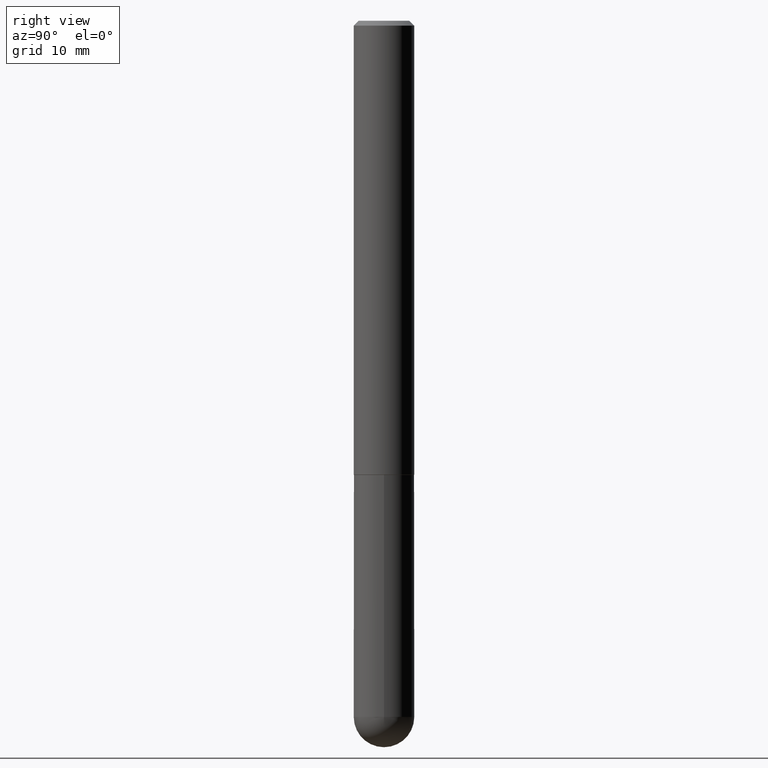
[diagram: clean part render]
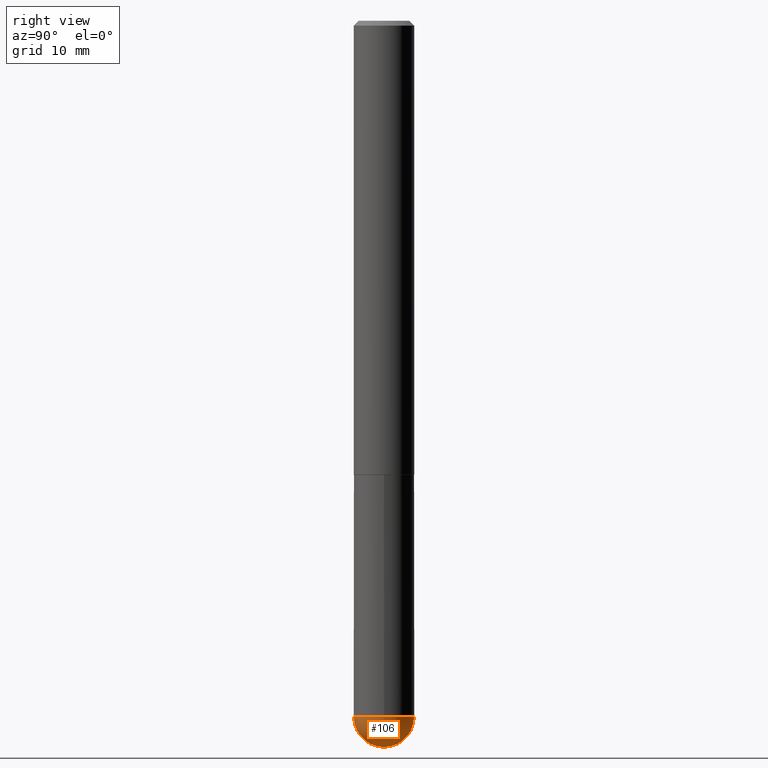
[diagram: same view with one face highlighted and labeled with its STEP entity id]
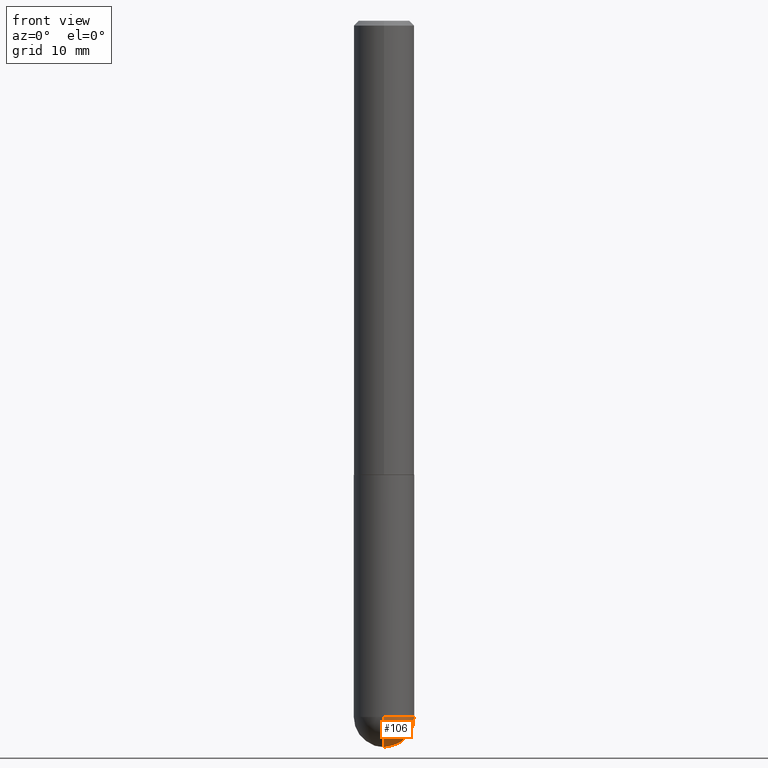
[diagram: same view with one face highlighted and labeled with its STEP entity id]
A machine part, right view. The second image highlights one B-rep face of the part: STEP entity #106.
A second angle (front view) of the same face is appended — the face is thin or edge-on in the first view.
In plain terms, the highlighted spherical surface has radius 3.175 mm.
Its self-contained STEP definition (entity closure, byte-faithful):
#18 = CARTESIAN_POINT ( 'NONE',  ( 7.030722817782268837E-29, -1.003800884917404626E-14, -2.875000000000000444 ) ) ;
#46 = EDGE_CURVE ( 'NONE', #272, #305, #195, .T. ) ;
#58 = CIRCLE ( 'NONE', #321, 0.1250000000000000000 ) ;
#69 = ORIENTED_EDGE ( 'NONE', *, *, #83, .F. ) ;
#83 = EDGE_CURVE ( 'NONE', #145, #267, #58, .T. ) ;
#84 = DIRECTION ( 'NONE',  ( 6.982962677686265133E-15, 1.000000000000000000, 0.000000000000000000 ) ) ;
#97 = CARTESIAN_POINT ( 'NONE',  ( 8.728703347108524628E-16, 0.1249999999999898276, -2.875000000000000888 ) ) ;
#99 = CARTESIAN_POINT ( 'NONE',  ( 7.010631429948896263E-29, -1.094097234217481886E-14, -3.000000000000000888 ) ) ;
#106 = ADVANCED_FACE ( 'NONE', ( #158 ), #279, .T. ) ;
#108 = ORIENTED_EDGE ( 'NONE', *, *, #273, .F. ) ;
#123 = CARTESIAN_POINT ( 'NONE',  ( 6.699603039868382590E-29, -1.051219121731409656E-14, -2.875000000000000444 ) ) ;
#141 = DIRECTION ( 'NONE',  ( 6.982962677686265922E-15, 1.000000000000000000, -4.370956789862814839E-15 ) ) ;
#145 = VERTEX_POINT ( 'NONE', #175 ) ;
#153 = DIRECTION ( 'NONE',  ( 1.000000000000000000, -6.982962677686262766E-15, 0.000000000000000000 ) ) ;
#155 = CIRCLE ( 'NONE', #337, 0.1250000000000000000 ) ;
#158 = FACE_OUTER_BOUND ( 'NONE', #361, .T. ) ;
#163 = AXIS2_PLACEMENT_3D ( 'NONE', #306, #218, #388 ) ;
#172 = DIRECTION ( 'NONE',  ( -2.445468806185136597E-29, 3.491481338843145583E-15, 1.000000000000000000 ) ) ;
#175 = CARTESIAN_POINT ( 'NONE',  ( -8.881784197000569959E-16, -0.1250000000000103806, -2.875000000000000000 ) ) ;
#195 = CIRCLE ( 'NONE', #394, 0.1250000000000001943 ) ;
#217 = EDGE_CURVE ( 'NONE', #272, #145, #235, .T. ) ;
#218 = DIRECTION ( 'NONE',  ( -1.000000000000000000, 7.105427357601001070E-15, -4.926315508542082329E-29 ) ) ;
#232 = DIRECTION ( 'NONE',  ( 1.000000000000000000, -6.982962677686262766E-15, 0.000000000000000000 ) ) ;
#235 = CIRCLE ( 'NONE', #163, 0.1250000000000001943 ) ;
#248 = DIRECTION ( 'NONE',  ( -1.000000000000000000, 6.982962677686265922E-15, -4.883557194083112901E-29 ) ) ;
#261 = AXIS2_PLACEMENT_3D ( 'NONE', #395, #248, #141 ) ;
#267 = VERTEX_POINT ( 'NONE', #313 ) ;
#272 = VERTEX_POINT ( 'NONE', #99 ) ;
#273 = EDGE_CURVE ( 'NONE', #267, #305, #155, .T. ) ;
#279 = SPHERICAL_SURFACE ( 'NONE', #261, 0.1250000000000001943 ) ;
#303 = DIRECTION ( 'NONE',  ( -2.445468806185136597E-29, 3.491481338843145583E-15, 1.000000000000000000 ) ) ;
#305 = VERTEX_POINT ( 'NONE', #97 ) ;
#306 = CARTESIAN_POINT ( 'NONE',  ( 6.699603039868382590E-29, -1.051219121731409656E-14, -2.875000000000000444 ) ) ;
#313 = CARTESIAN_POINT ( 'NONE',  ( 0.1250000000000000000, -9.165138514463255034E-15, -2.875000000000000444 ) ) ;
#321 = AXIS2_PLACEMENT_3D ( 'NONE', #18, #303, #153 ) ;
#337 = AXIS2_PLACEMENT_3D ( 'NONE', #383, #172, #232 ) ;
#361 = EDGE_LOOP ( 'NONE', ( #374, #401, #108, #69 ) ) ;
#364 = DIRECTION ( 'NONE',  ( 1.000000000000000000, -6.982962677686265922E-15, 4.883557194083112340E-29 ) ) ;
#374 = ORIENTED_EDGE ( 'NONE', *, *, #217, .F. ) ;
#383 = CARTESIAN_POINT ( 'NONE',  ( 7.030722817782268837E-29, -1.003800884917404626E-14, -2.875000000000000444 ) ) ;
#388 = DIRECTION ( 'NONE',  ( -7.105427357601000281E-15, -1.000000000000000000, 0.000000000000000000 ) ) ;
#394 = AXIS2_PLACEMENT_3D ( 'NONE', #123, #364, #84 ) ;
#395 = CARTESIAN_POINT ( 'NONE',  ( 6.699603039868382590E-29, -1.051219121731409656E-14, -2.875000000000000444 ) ) ;
#401 = ORIENTED_EDGE ( 'NONE', *, *, #46, .T. ) ;